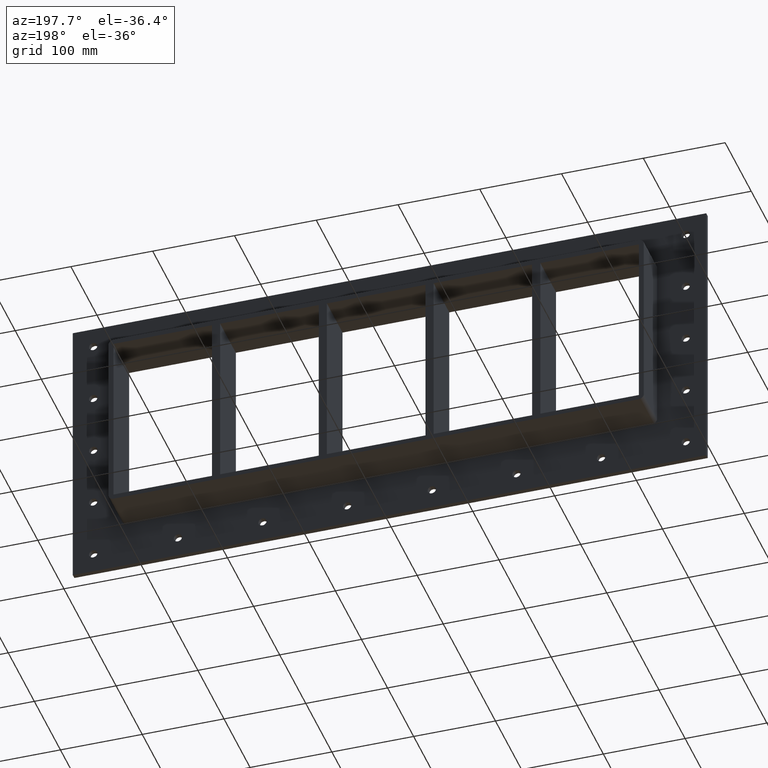
[diagram: clean part render]
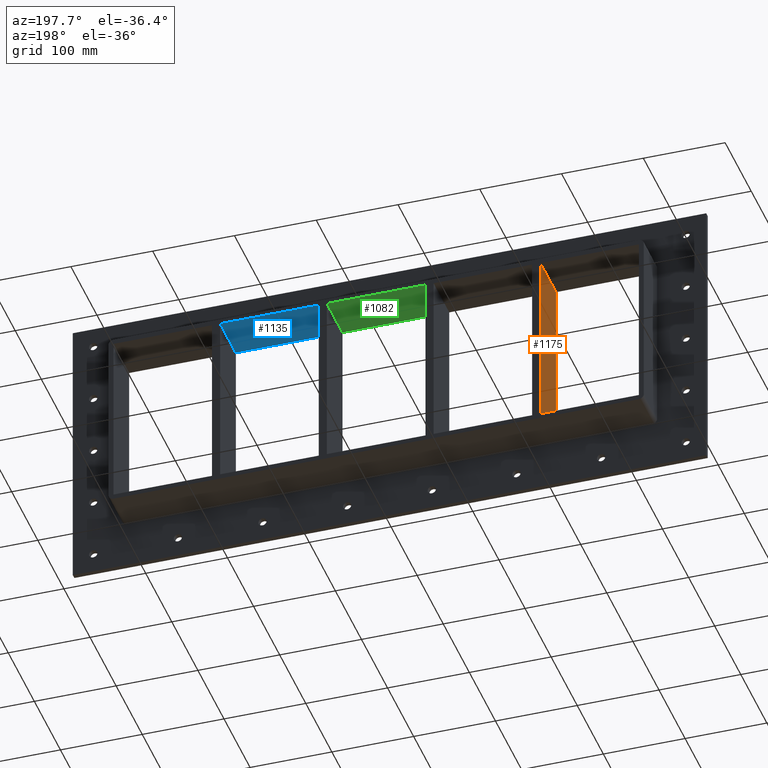
[diagram: same view with three faces highlighted in distinct colors, each labeled with its STEP entity id]
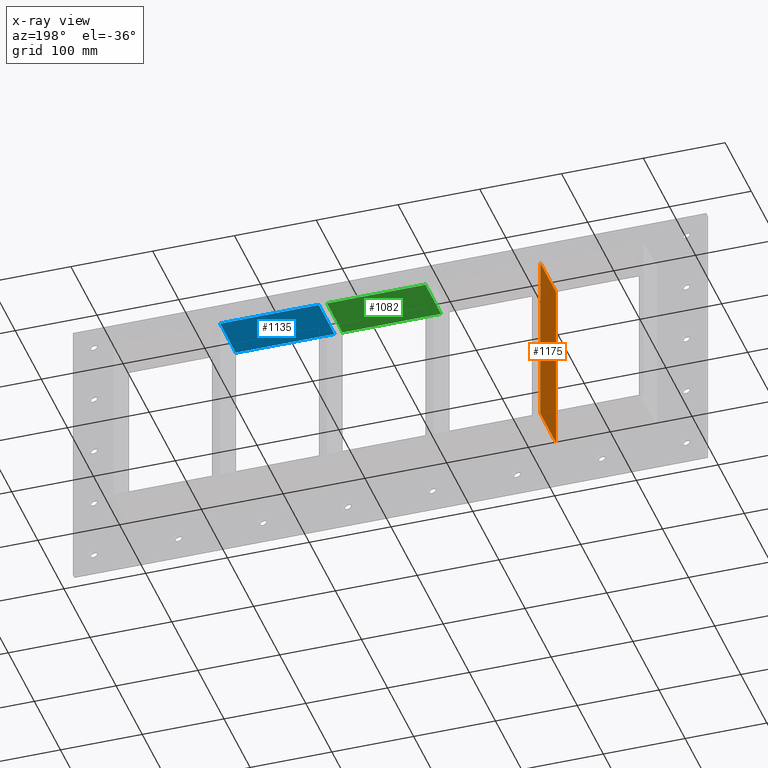
[diagram: x-ray of the same camera — body ghosted, the three highlighted faces saturated]
A machine part, auxiliary view with three faces highlighted in distinct colors.
The next image is the same camera in x-ray (body ghosted, the three faces saturated) — at least one of them is partly hidden behind the body in this view.
Their STEP definitions:

[orange] entity #1175 — the highlighted planar face has unit normal (-1, 0, 0).
#1136=CARTESIAN_POINT('',(-200.75000000000131,-3.0,-108.99999999999999));
#1137=DIRECTION('',(-1.0,0.0,0.0));
#1138=DIRECTION('',(0.0,0.0,1.0));
#1139=AXIS2_PLACEMENT_3D('',#1136,#1137,#1138);
#1140=PLANE('',#1139);
#1141=CARTESIAN_POINT('',(-200.75000000000131,-3.0,-108.99999999999999));
#1142=VERTEX_POINT('',#1141);
#1143=CARTESIAN_POINT('',(-200.75000000000134,-3.0,109.00000000000003));
#1144=VERTEX_POINT('',#1143);
#1145=CARTESIAN_POINT('',(-200.75000000000131,-3.0,-108.99999999999999));
#1146=DIRECTION('',(0.0,0.0,1.0));
#1147=VECTOR('',#1146,218.0);
#1148=LINE('',#1145,#1147);
#1149=EDGE_CURVE('',#1142,#1144,#1148,.T.);
#1150=ORIENTED_EDGE('',*,*,#1149,.T.);
#1151=CARTESIAN_POINT('',(-200.75000000000134,57.0,109.00000000000003));
#1152=VERTEX_POINT('',#1151);
#1153=CARTESIAN_POINT('',(-200.75000000000131,57.000000000000007,109.00000000000003));
#1154=DIRECTION('',(0.0,-1.0,0.0));
#1155=VECTOR('',#1154,60.000000000000007);
#1156=LINE('',#1153,#1155);
#1157=EDGE_CURVE('',#1152,#1144,#1156,.T.);
#1158=ORIENTED_EDGE('',*,*,#1157,.F.);
#1159=CARTESIAN_POINT('',(-200.75000000000131,57.0,-108.99999999999999));
#1160=VERTEX_POINT('',#1159);
#1161=CARTESIAN_POINT('',(-200.75000000000131,57.0,-108.99999999999999));
#1162=DIRECTION('',(0.0,0.0,1.0));
#1163=VECTOR('',#1162,218.0);
#1164=LINE('',#1161,#1163);
#1165=EDGE_CURVE('',#1160,#1152,#1164,.T.);
#1166=ORIENTED_EDGE('',*,*,#1165,.F.);
#1167=CARTESIAN_POINT('',(-200.75000000000131,-3.0,-108.99999999999999));
#1168=DIRECTION('',(0.0,1.0,0.0));
#1169=VECTOR('',#1168,60.000000000000007);
#1170=LINE('',#1167,#1169);
#1171=EDGE_CURVE('',#1142,#1160,#1170,.T.);
#1172=ORIENTED_EDGE('',*,*,#1171,.F.);
#1173=EDGE_LOOP('',(#1150,#1158,#1166,#1172));
#1174=FACE_OUTER_BOUND('',#1173,.T.);
#1175=ADVANCED_FACE('',(#1174),#1140,.T.);

[blue] entity #1135 — the highlighted planar face has unit normal (0, 0, 1).
#691=CARTESIAN_POINT('',(190.74999999999872,-3.0,109.00000000000003));
#692=VERTEX_POINT('',#691);
#699=CARTESIAN_POINT('',(190.74999999999872,57.0,109.00000000000003));
#700=VERTEX_POINT('',#699);
#701=CARTESIAN_POINT('',(190.74999999999875,57.000000000000007,109.00000000000003));
#702=DIRECTION('',(0.0,-1.0,0.0));
#703=VECTOR('',#702,60.000000000000007);
#704=LINE('',#701,#703);
#705=EDGE_CURVE('',#700,#692,#704,.T.);
#809=CARTESIAN_POINT('',(70.249999999992738,-3.0,109.00000000000003));
#810=VERTEX_POINT('',#809);
#827=CARTESIAN_POINT('',(70.249999999992738,57.0,109.00000000000003));
#828=VERTEX_POINT('',#827);
#835=CARTESIAN_POINT('',(70.249999999992738,-3.0,109.00000000000003));
#836=DIRECTION('',(0.0,1.0,0.0));
#837=VECTOR('',#836,60.000000000000007);
#838=LINE('',#835,#837);
#839=EDGE_CURVE('',#810,#828,#838,.T.);
#1114=CARTESIAN_POINT('',(-321.25,0.0,109.00000000000003));
#1115=DIRECTION('',(0.0,0.0,1.0));
#1116=DIRECTION('',(1.0,0.0,0.0));
#1117=AXIS2_PLACEMENT_3D('',#1114,#1115,#1116);
#1118=PLANE('',#1117);
#1119=ORIENTED_EDGE('',*,*,#705,.T.);
#1120=CARTESIAN_POINT('',(70.249999999992724,-3.0,109.00000000000003));
#1121=DIRECTION('',(1.0,0.0,0.0));
#1122=VECTOR('',#1121,120.500000000006);
#1123=LINE('',#1120,#1122);
#1124=EDGE_CURVE('',#810,#692,#1123,.T.);
#1125=ORIENTED_EDGE('',*,*,#1124,.F.);
#1126=ORIENTED_EDGE('',*,*,#839,.T.);
#1127=CARTESIAN_POINT('',(190.74999999999872,57.0,109.00000000000003));
#1128=DIRECTION('',(-1.0,0.0,0.0));
#1129=VECTOR('',#1128,120.500000000006);
#1130=LINE('',#1127,#1129);
#1131=EDGE_CURVE('',#700,#828,#1130,.T.);
#1132=ORIENTED_EDGE('',*,*,#1131,.F.);
#1133=EDGE_LOOP('',(#1119,#1125,#1126,#1132));
#1134=FACE_OUTER_BOUND('',#1133,.T.);
#1135=ADVANCED_FACE('',(#1134),#1118,.F.);

[green] entity #1082 — the highlighted planar face has unit normal (0, 0, 1).
#771=CARTESIAN_POINT('',(60.249999999998671,-3.0,109.00000000000003));
#772=VERTEX_POINT('',#771);
#779=CARTESIAN_POINT('',(60.249999999998671,57.0,109.00000000000003));
#780=VERTEX_POINT('',#779);
#781=CARTESIAN_POINT('',(60.24999999999865,57.000000000000007,109.00000000000003));
#782=DIRECTION('',(0.0,-1.0,0.0));
#783=VECTOR('',#782,60.000000000000007);
#784=LINE('',#781,#783);
#785=EDGE_CURVE('',#780,#772,#784,.T.);
#889=CARTESIAN_POINT('',(-60.250000000007269,-3.0,109.00000000000003));
#890=VERTEX_POINT('',#889);
#907=CARTESIAN_POINT('',(-60.250000000007269,57.0,109.00000000000003));
#908=VERTEX_POINT('',#907);
#915=CARTESIAN_POINT('',(-60.25000000000729,-3.0,109.00000000000003));
#916=DIRECTION('',(0.0,1.0,0.0));
#917=VECTOR('',#916,60.000000000000007);
#918=LINE('',#915,#917);
#919=EDGE_CURVE('',#890,#908,#918,.T.);
#1061=CARTESIAN_POINT('',(-321.25,0.0,109.00000000000003));
#1062=DIRECTION('',(0.0,0.0,1.0));
#1063=DIRECTION('',(1.0,0.0,0.0));
#1064=AXIS2_PLACEMENT_3D('',#1061,#1062,#1063);
#1065=PLANE('',#1064);
#1066=ORIENTED_EDGE('',*,*,#785,.T.);
#1067=CARTESIAN_POINT('',(-60.250000000007276,-3.0,109.00000000000003));
#1068=DIRECTION('',(1.0,0.0,0.0));
#1069=VECTOR('',#1068,120.50000000000594);
#1070=LINE('',#1067,#1069);
#1071=EDGE_CURVE('',#890,#772,#1070,.T.);
#1072=ORIENTED_EDGE('',*,*,#1071,.F.);
#1073=ORIENTED_EDGE('',*,*,#919,.T.);
#1074=CARTESIAN_POINT('',(60.249999999998664,57.0,109.00000000000003));
#1075=DIRECTION('',(-1.0,0.0,0.0));
#1076=VECTOR('',#1075,120.50000000000594);
#1077=LINE('',#1074,#1076);
#1078=EDGE_CURVE('',#780,#908,#1077,.T.);
#1079=ORIENTED_EDGE('',*,*,#1078,.F.);
#1080=EDGE_LOOP('',(#1066,#1072,#1073,#1079));
#1081=FACE_OUTER_BOUND('',#1080,.T.);
#1082=ADVANCED_FACE('',(#1081),#1065,.F.);